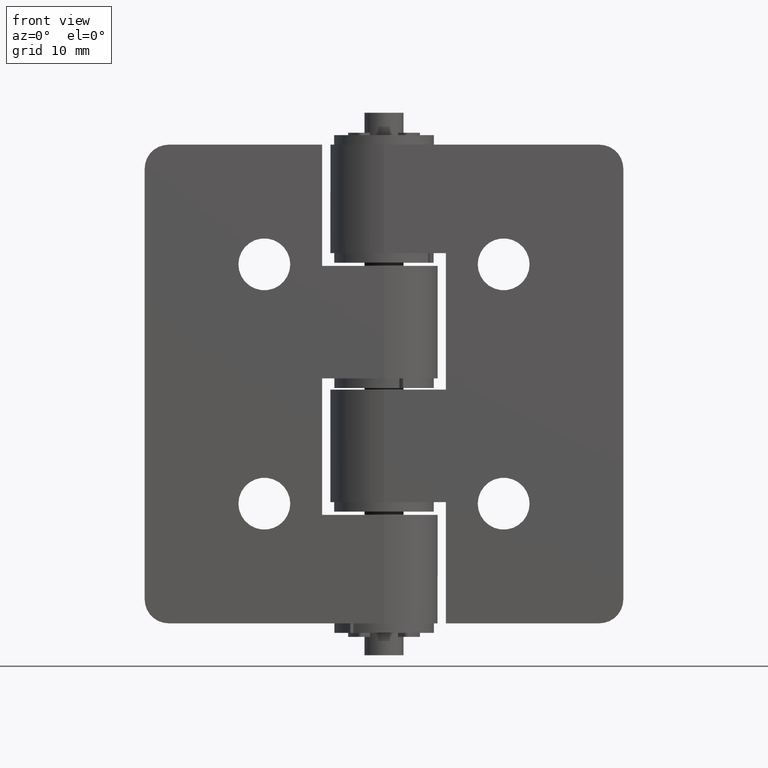
[diagram: clean part render]
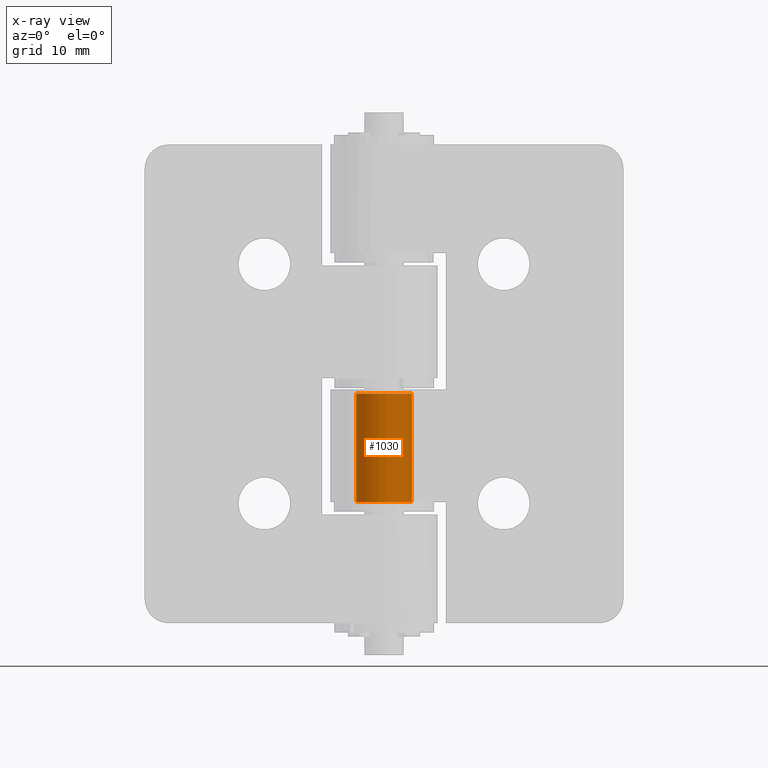
[diagram: x-ray — body ghosted, one internal face saturated and labeled with its STEP entity id]
A machine part, front view, then the same camera in x-ray: the body is ghosted and one INTERNAL B-rep face — a face not visible from any outside direction — is saturated and labeled: STEP entity #1030.
In plain terms, the highlighted cylindrical surface (edge-blend (fillet) strip) has radius 3.5 mm, axis along (-0, -0, -1).
Its self-contained STEP definition (entity closure, byte-faithful):
#155=FACE_OUTER_BOUND('',#234,.T.);
#234=EDGE_LOOP('',(#835,#836,#837,#838));
#296=LINE('',#1710,#369);
#300=LINE('',#1719,#373);
#369=VECTOR('',#1369,13.6);
#373=VECTOR('',#1375,13.6);
#438=CIRCLE('',#1131,3.5);
#439=CIRCLE('',#1132,3.5);
#518=VERTEX_POINT('',#1707);
#519=VERTEX_POINT('',#1709);
#522=VERTEX_POINT('',#1716);
#523=VERTEX_POINT('',#1718);
#629=EDGE_CURVE('',#519,#518,#296,.T.);
#633=EDGE_CURVE('',#523,#522,#300,.T.);
#637=EDGE_CURVE('',#518,#523,#438,.T.);
#638=EDGE_CURVE('',#519,#522,#439,.T.);
#835=ORIENTED_EDGE('',*,*,#629,.T.);
#836=ORIENTED_EDGE('',*,*,#637,.T.);
#837=ORIENTED_EDGE('',*,*,#633,.T.);
#838=ORIENTED_EDGE('',*,*,#638,.F.);
#981=CYLINDRICAL_SURFACE('',#1130,3.5);
#1030=ADVANCED_FACE('',(#155),#981,.T.);
#1130=AXIS2_PLACEMENT_3D('',#1725,#1379,#1380);
#1131=AXIS2_PLACEMENT_3D('',#1726,#1381,#1382);
#1132=AXIS2_PLACEMENT_3D('',#1727,#1383,#1384);
#1369=DIRECTION('',(-5.62613019235721E-16,1.,0.));
#1375=DIRECTION('',(5.62613019235721E-16,-1.,0.));
#1379=DIRECTION('center_axis',(5.62613019235721E-16,-1.,0.));
#1380=DIRECTION('ref_axis',(1.,4.80489795402845E-16,0.));
#1381=DIRECTION('center_axis',(5.62613019235721E-16,-1.,0.));
#1382=DIRECTION('ref_axis',(1.,5.62613019235721E-16,0.));
#1383=DIRECTION('center_axis',(5.62613019235721E-16,-1.,0.));
#1384=DIRECTION('ref_axis',(1.,5.62613019235721E-16,0.));
#1707=CARTESIAN_POINT('',(0.249999999999993,14.8,-3.49106001094224));
#1709=CARTESIAN_POINT('',(0.25,1.2,-3.49106001094223));
#1710=CARTESIAN_POINT('',(0.249999999999997,8.,-3.49106001094224));
#1716=CARTESIAN_POINT('',(-0.249999999999999,1.2,-3.49106001094223));
#1718=CARTESIAN_POINT('',(-0.250000000000007,14.8,-3.49106001094224));
#1719=CARTESIAN_POINT('',(-0.250000000000003,8.,-3.49106001094224));
#1725=CARTESIAN_POINT('Origin',(-4.50090415388577E-15,8.,0.));
#1726=CARTESIAN_POINT('Origin',(-8.32667268468867E-15,14.8,0.));
#1727=CARTESIAN_POINT('Origin',(-6.75135623082865E-16,1.2,0.));